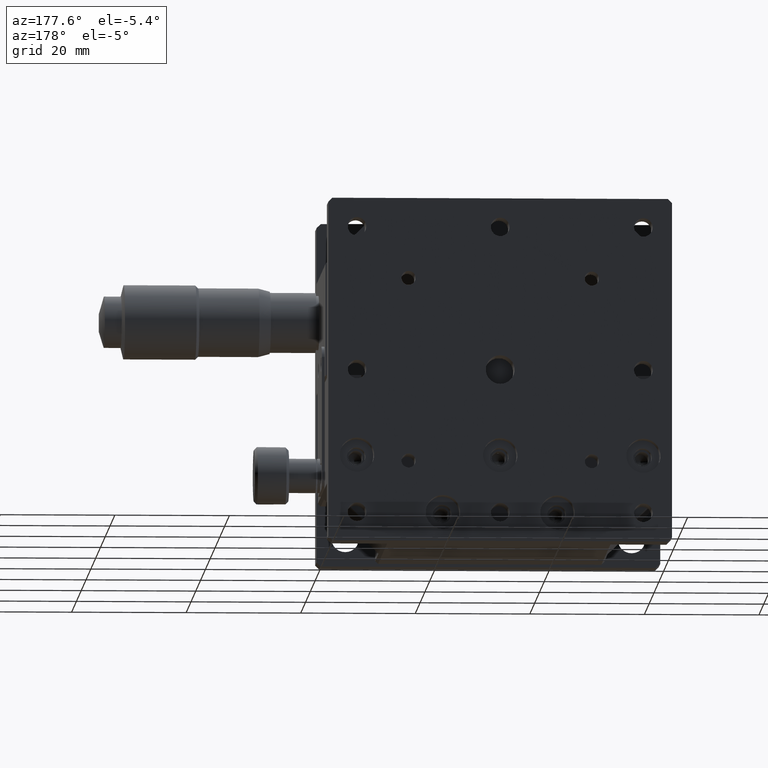
[diagram: clean part render]
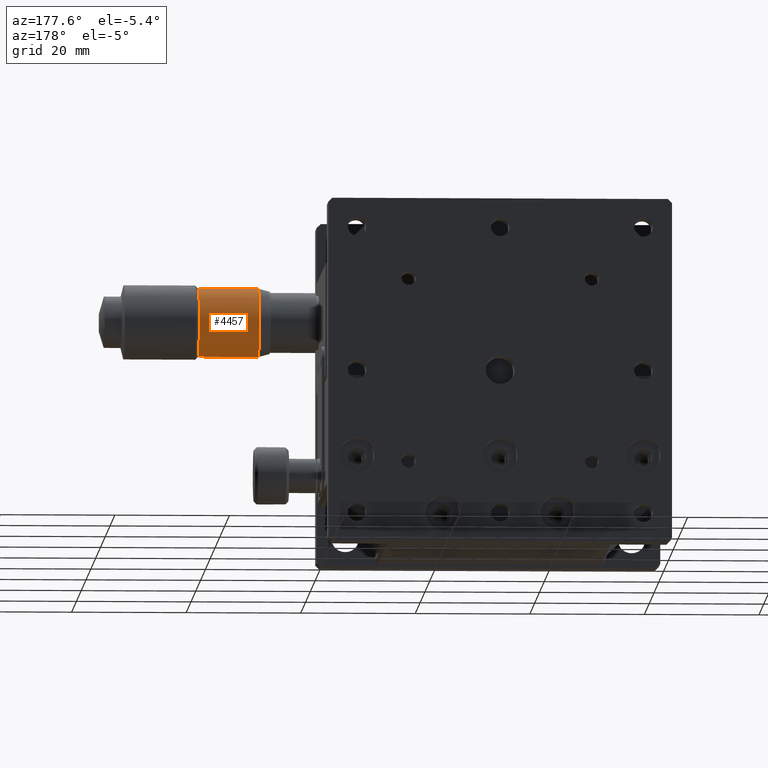
[diagram: same view with one face highlighted and labeled with its STEP entity id]
A machine part, auxiliary view. The second image highlights one B-rep face of the part: STEP entity #4457.
In plain terms, the highlighted cylindrical surface (bore or boss wall) has radius 6 mm, axis along (1, 0, 0).
Its self-contained STEP definition (entity closure, byte-faithful):
#171 = CARTESIAN_POINT ( 'NONE',  ( 81.00000000000000000, 13.00000000000000178, -24.00000000000000000 ) ) ;
#493 = AXIS2_PLACEMENT_3D ( 'NONE', #8763, #3167, #6917 ) ;
#1097 = AXIS2_PLACEMENT_3D ( 'NONE', #3158, #6906, #2234 ) ;
#1235 = ORIENTED_EDGE ( 'NONE', *, *, #8134, .F. ) ;
#1664 = DIRECTION ( 'NONE',  ( 0.000000000000000000, 0.000000000000000000, -1.000000000000000000 ) ) ;
#2234 = DIRECTION ( 'NONE',  ( 0.000000000000000000, 0.000000000000000000, -1.000000000000000000 ) ) ;
#2708 = EDGE_CURVE ( 'NONE', #11379, #11379, #5242, .T. ) ;
#3158 = CARTESIAN_POINT ( 'NONE',  ( 81.00000000000000000, 13.00000000000000178, -18.00000000000000355 ) ) ;
#3167 = DIRECTION ( 'NONE',  ( -1.000000000000000000, -0.000000000000000000, -0.000000000000000000 ) ) ;
#3286 = VERTEX_POINT ( 'NONE', #8878 ) ;
#3521 = FACE_OUTER_BOUND ( 'NONE', #12118, .T. ) ;
#4412 = ORIENTED_EDGE ( 'NONE', *, *, #2708, .T. ) ;
#4457 = ADVANCED_FACE ( 'NONE', ( #3521, #11148 ), #7265, .T. ) ;
#4892 = EDGE_LOOP ( 'NONE', ( #1235 ) ) ;
#5242 = CIRCLE ( 'NONE', #1097, 5.999999999999998224 ) ;
#5265 = AXIS2_PLACEMENT_3D ( 'NONE', #8063, #7201, #1664 ) ;
#6906 = DIRECTION ( 'NONE',  ( -1.000000000000000000, -0.000000000000000000, -0.000000000000000000 ) ) ;
#6917 = DIRECTION ( 'NONE',  ( 0.000000000000000000, 0.000000000000000000, -1.000000000000000000 ) ) ;
#7201 = DIRECTION ( 'NONE',  ( 1.000000000000000000, 0.000000000000000000, 0.000000000000000000 ) ) ;
#7265 = CYLINDRICAL_SURFACE ( 'NONE', #5265, 5.999999999999998224 ) ;
#8063 = CARTESIAN_POINT ( 'NONE',  ( 98.49971445025400385, 13.00000000000000178, -18.00000000000000355 ) ) ;
#8134 = EDGE_CURVE ( 'NONE', #3286, #3286, #11117, .T. ) ;
#8763 = CARTESIAN_POINT ( 'NONE',  ( 70.50000000015188562, 13.00000000000000178, -18.00000000000000355 ) ) ;
#8878 = CARTESIAN_POINT ( 'NONE',  ( 70.50000000015188562, 13.00000000000000178, -23.99999999940405360 ) ) ;
#11117 = CIRCLE ( 'NONE', #493, 5.999999999404051820 ) ;
#11148 = FACE_OUTER_BOUND ( 'NONE', #4892, .T. ) ;
#11379 = VERTEX_POINT ( 'NONE', #171 ) ;
#12118 = EDGE_LOOP ( 'NONE', ( #4412 ) ) ;